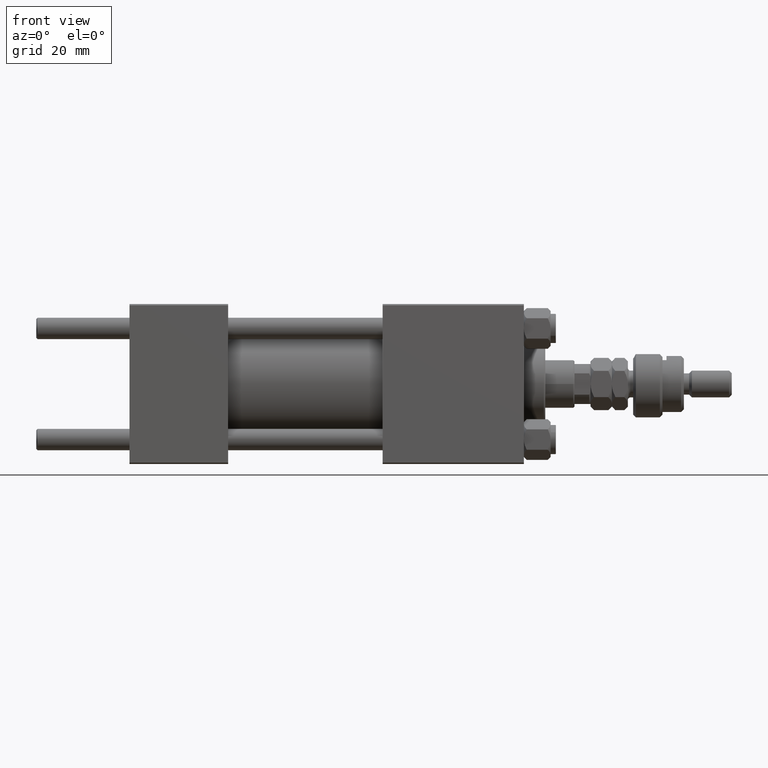
[diagram: clean part render]
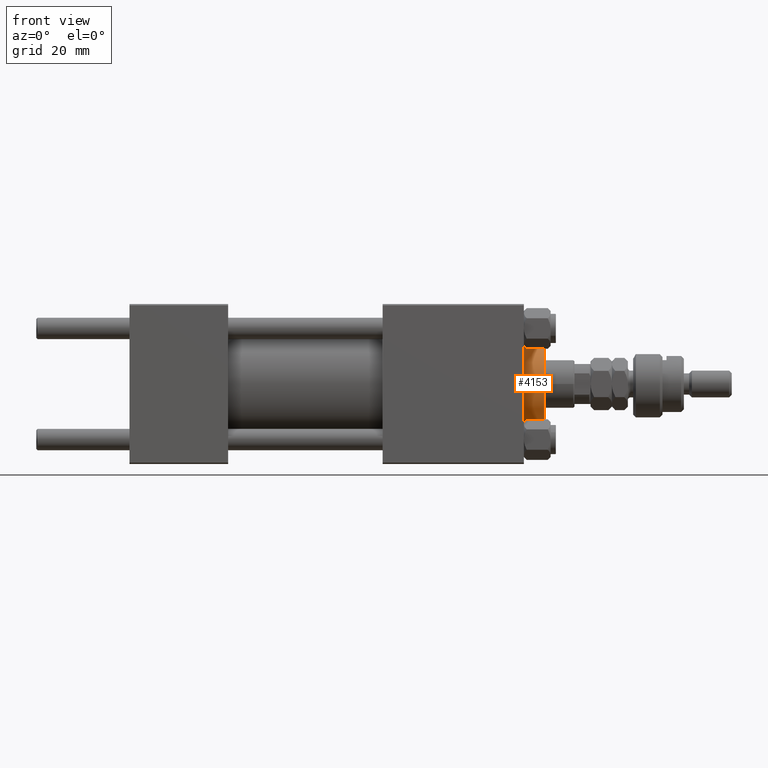
[diagram: same view with one face highlighted and labeled with its STEP entity id]
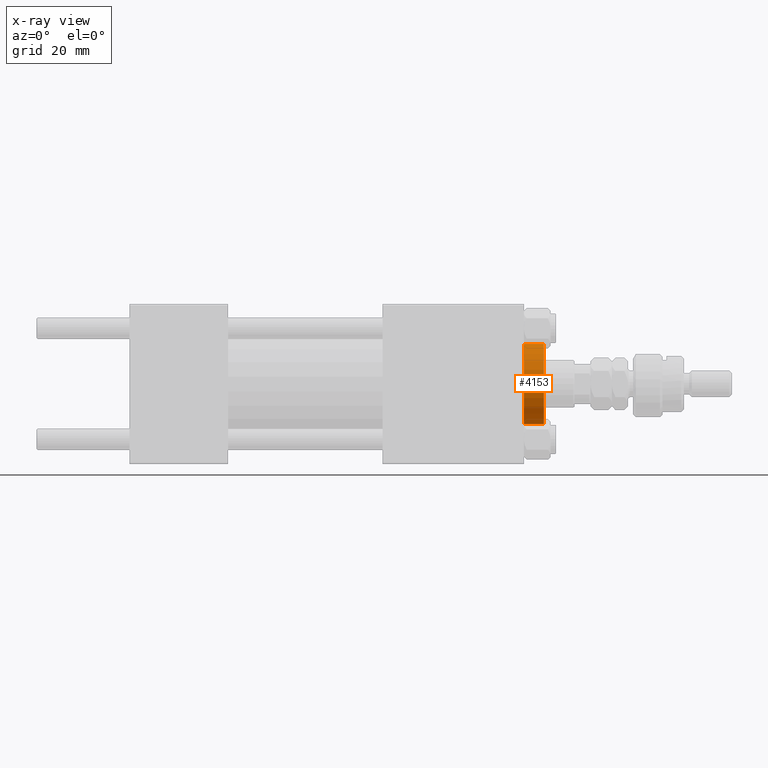
[diagram: x-ray of the same camera — body ghosted, the highlighted face saturated]
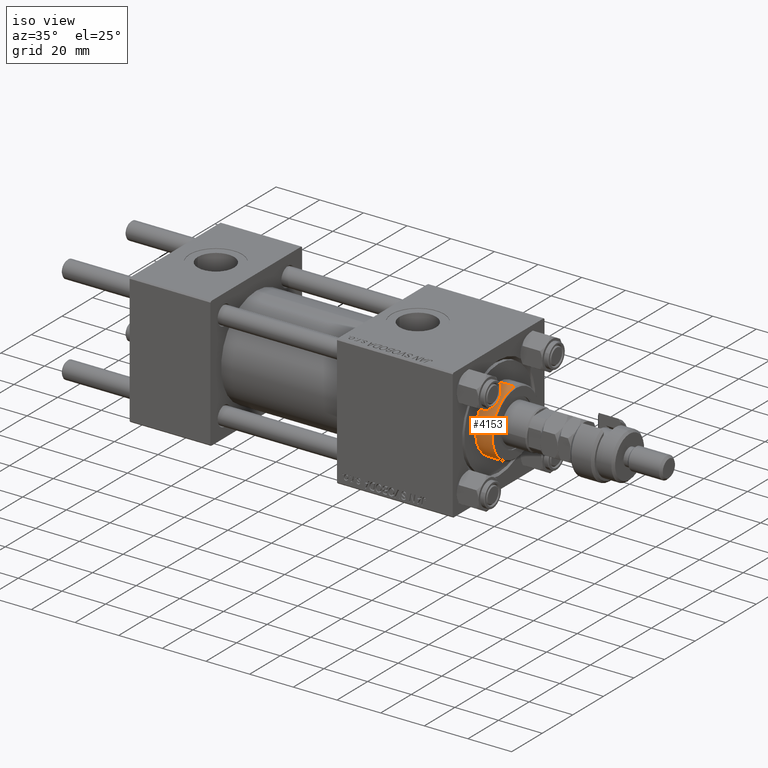
[diagram: same view with one face highlighted and labeled with its STEP entity id]
A machine part, front view. The second image highlights one B-rep face of the part: STEP entity #4153.
The next image is the same camera in x-ray: the body ghosted, the highlighted face saturated — about 0% of this face is hidden behind the body in this view.
A second angle (iso view) of the same face is appended — the face is thin or edge-on in the first view.
In plain terms, the highlighted cylindrical surface (partial cylindrical patch) has radius 15 mm, axis along (-1, -0, 0).
Its self-contained STEP definition (entity closure, byte-faithful):
#778 = DIRECTION ( 'NONE',  ( 1.000000000000000000, 0.000000000000000000, 0.000000000000000000 ) ) ;
#958 = LINE ( 'NONE', #41724, #3998 ) ;
#3998 = VECTOR ( 'NONE', #5745, 1000.000000000000000 ) ;
#4153 = ADVANCED_FACE ( 'NONE', ( #38373 ), #42649, .T. ) ;
#4677 = EDGE_CURVE ( 'NONE', #33680, #52066, #16098, .T. ) ;
#4769 = CARTESIAN_POINT ( 'NONE',  ( 0.000000000000000000, 0.000000000000000000, 28.69999999999999929 ) ) ;
#5364 = CARTESIAN_POINT ( 'NONE',  ( 15.00000000000000000, 1.836970198721029589E-15, 36.20000000000000284 ) ) ;
#5734 = DIRECTION ( 'NONE',  ( 0.000000000000000000, 0.000000000000000000, -1.000000000000000000 ) ) ;
#5745 = DIRECTION ( 'NONE',  ( -0.000000000000000000, -0.000000000000000000, -1.000000000000000000 ) ) ;
#6131 = CARTESIAN_POINT ( 'NONE',  ( 0.000000000000000000, 0.000000000000000000, 36.69999999999999574 ) ) ;
#6276 = DIRECTION ( 'NONE',  ( 1.000000000000000000, 0.000000000000000000, 0.000000000000000000 ) ) ;
#13810 = ORIENTED_EDGE ( 'NONE', *, *, #32940, .T. ) ;
#14566 = VERTEX_POINT ( 'NONE', #18531 ) ;
#16098 = CIRCLE ( 'NONE', #16933, 15.00000000000000000 ) ;
#16933 = AXIS2_PLACEMENT_3D ( 'NONE', #33965, #5734, #6276 ) ;
#17158 = ORIENTED_EDGE ( 'NONE', *, *, #4677, .T. ) ;
#17342 = CARTESIAN_POINT ( 'NONE',  ( 15.00000000000000000, 1.836970198721029589E-15, 36.69999999999999574 ) ) ;
#18390 = DIRECTION ( 'NONE',  ( -0.000000000000000000, -0.000000000000000000, -1.000000000000000000 ) ) ;
#18531 = CARTESIAN_POINT ( 'NONE',  ( 15.00000000000000000, 1.836970198721029589E-15, 28.69999999999999929 ) ) ;
#18644 = VERTEX_POINT ( 'NONE', #30498 ) ;
#21291 = ORIENTED_EDGE ( 'NONE', *, *, #24314, .F. ) ;
#21690 = AXIS2_PLACEMENT_3D ( 'NONE', #4769, #49274, #778 ) ;
#24213 = VECTOR ( 'NONE', #49054, 1000.000000000000000 ) ;
#24314 = EDGE_CURVE ( 'NONE', #33680, #14566, #25586, .T. ) ;
#25586 = LINE ( 'NONE', #17342, #24213 ) ;
#28286 = EDGE_LOOP ( 'NONE', ( #21291, #17158, #37609, #13810 ) ) ;
#28484 = CIRCLE ( 'NONE', #21690, 15.00000000000000000 ) ;
#30498 = CARTESIAN_POINT ( 'NONE',  ( -15.00000000000000000, 0.000000000000000000, 28.69999999999999929 ) ) ;
#32940 = EDGE_CURVE ( 'NONE', #18644, #14566, #28484, .T. ) ;
#33680 = VERTEX_POINT ( 'NONE', #5364 ) ;
#33965 = CARTESIAN_POINT ( 'NONE',  ( 0.000000000000000000, 0.000000000000000000, 36.20000000000000284 ) ) ;
#34624 = DIRECTION ( 'NONE',  ( -1.000000000000000000, 0.000000000000000000, 0.000000000000000000 ) ) ;
#37356 = EDGE_CURVE ( 'NONE', #52066, #18644, #958, .T. ) ;
#37609 = ORIENTED_EDGE ( 'NONE', *, *, #37356, .T. ) ;
#38237 = AXIS2_PLACEMENT_3D ( 'NONE', #6131, #18390, #34624 ) ;
#38373 = FACE_OUTER_BOUND ( 'NONE', #28286, .T. ) ;
#41724 = CARTESIAN_POINT ( 'NONE',  ( -15.00000000000000000, 0.000000000000000000, 36.69999999999999574 ) ) ;
#42649 = CYLINDRICAL_SURFACE ( 'NONE', #38237, 15.00000000000000000 ) ;
#47190 = CARTESIAN_POINT ( 'NONE',  ( -15.00000000000000000, 0.000000000000000000, 36.20000000000000284 ) ) ;
#49054 = DIRECTION ( 'NONE',  ( -0.000000000000000000, -0.000000000000000000, -1.000000000000000000 ) ) ;
#49274 = DIRECTION ( 'NONE',  ( 0.000000000000000000, 0.000000000000000000, 1.000000000000000000 ) ) ;
#52066 = VERTEX_POINT ( 'NONE', #47190 ) ;